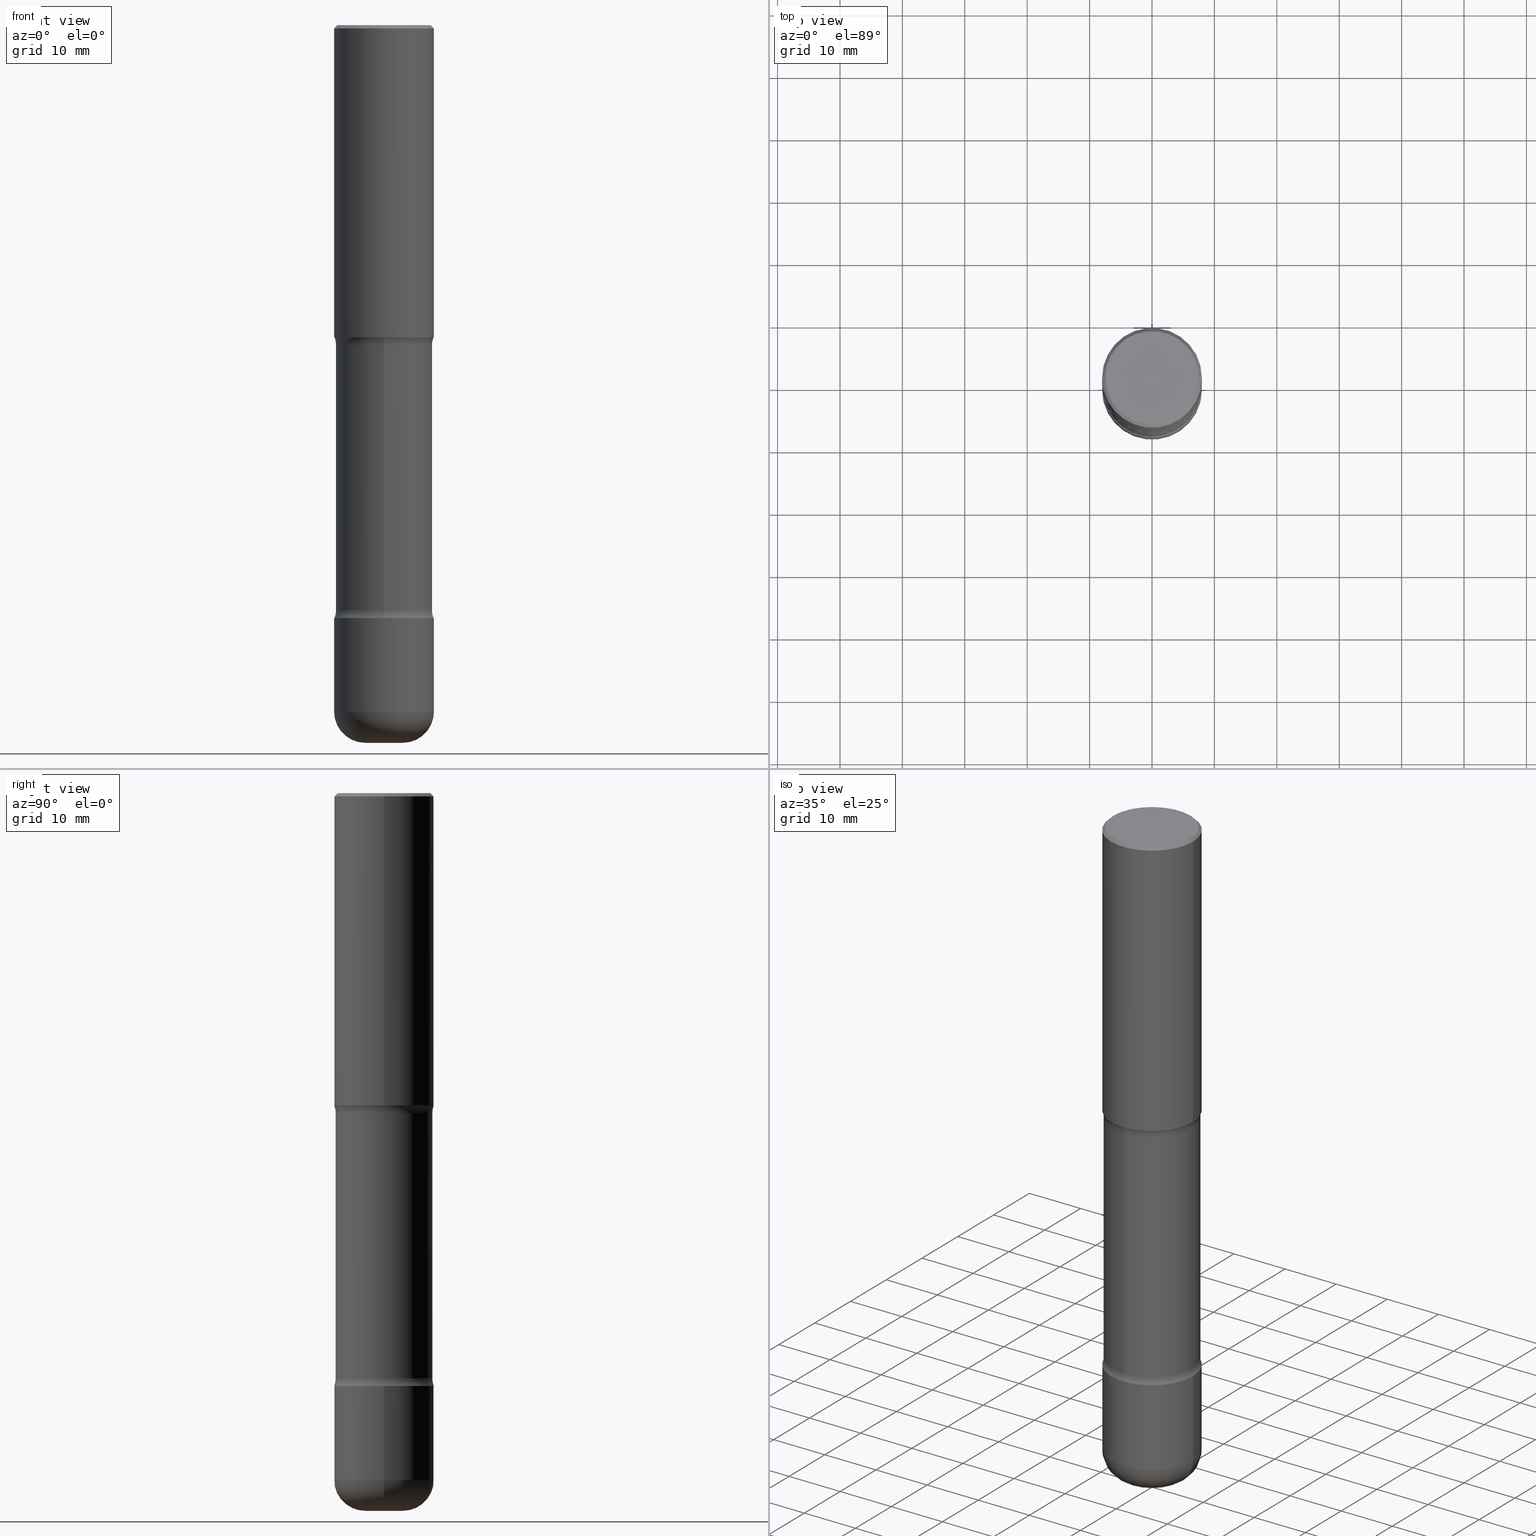
[diagram: canonical four-view strip — front | top / right | iso, engineering-drawing reading convention]
A machine part, canonical four-view strip (front | top / right | iso — engineering-drawing reading convention). The complete STEP part file that produces these views, byte-faithful:
ISO-10303-21;
HEADER;
FILE_DESCRIPTION (( 'STEP AP203' ),
    '1' );
FILE_NAME ('46835.STEP',
    '2024-03-02T05:45:21',
    ( '' ),
    ( '' ),
    'SwSTEP 2.0',
    'SolidWorks 2023',
    '' );
FILE_SCHEMA (( 'CONFIG_CONTROL_DESIGN' ));
ENDSEC;

DATA;
#1 = CIRCLE ( 'NONE', #430, 0.3149500000000001743 ) ;
#2 = VERTEX_POINT ( 'NONE', #418 ) ;
#3 = LOCAL_TIME ( 0, 45, 21.00000000000000000, #375 ) ;
#4 = EDGE_CURVE ( 'NONE', #214, #2, #13, .T. ) ;
#5 = DIRECTION ( 'NONE',  ( -2.445468806185136597E-29, 3.491481338843145583E-15, 1.000000000000000000 ) ) ;
#6 = ORIENTED_EDGE ( 'NONE', *, *, #505, .T. ) ;
#7 = ORIENTED_EDGE ( 'NONE', *, *, #287, .T. ) ;
#8 = TOROIDAL_SURFACE ( 'NONE', #331, 0.1180500000000003352, 0.1969000000000001305 ) ;
#9 = AXIS2_PLACEMENT_3D ( 'NONE', #201, #290, #466 ) ;
#10 = DIRECTION ( 'NONE',  ( 1.000000000000000000, -6.982962677686267499E-15, 4.876176775795936353E-29 ) ) ;
#11 = DESIGN_CONTEXT ( 'detailed design', #121, 'design' ) ;
#12 = DIRECTION ( 'NONE',  ( 2.508997697352003204E-29, -3.400504350852260021E-15, -1.000000000000000000 ) ) ;
#13 = LINE ( 'NONE', #535, #199 ) ;
#14 = PERSON_AND_ORGANIZATION ( #553, #539 ) ;
#15 = DIRECTION ( 'NONE',  ( 2.508997697352003204E-29, -3.400504350852260021E-15, -1.000000000000000000 ) ) ;
#16 = EDGE_CURVE ( 'NONE', #102, #214, #537, .T. ) ;
#17 = VERTEX_POINT ( 'NONE', #250 ) ;
#18 = DATE_AND_TIME ( #502, #192 ) ;
#19 = AXIS2_PLACEMENT_3D ( 'NONE', #389, #168, #83 ) ;
#20 = AXIS2_PLACEMENT_3D ( 'NONE', #385, #5, #215 ) ;
#21 = CIRCLE ( 'NONE', #240, 0.3149500000000002298 ) ;
#22 = FACE_OUTER_BOUND ( 'NONE', #194, .T. ) ;
#23 = ORIENTED_EDGE ( 'NONE', *, *, #136, .T. ) ;
#24 = PERSON_AND_ORGANIZATION_ROLE ( 'creator' ) ;
#25 = CARTESIAN_POINT ( 'NONE',  ( -0.3149500000000002853, 2.237854346276437562E-15, -1.549218606675783797E-29 ) ) ;
#26 = CC_DESIGN_DATE_AND_TIME_ASSIGNMENT ( #327, #115, ( #209 ) ) ;
#27 = ORIENTED_EDGE ( 'NONE', *, *, #178, .F. ) ;
#28 = MANIFOLD_SOLID_BREP ( 'Body-Move/Copy2[4]', #446 ) ;
#29 = ORIENTED_EDGE ( 'NONE', *, *, #178, .T. ) ;
#30 = CARTESIAN_POINT ( 'NONE',  ( 4.838038961945526824E-29, -7.180209988345925109E-15, -2.017372256956274423 ) ) ;
#31 = ADVANCED_FACE ( 'NONE', ( #345 ), #127, .F. ) ;
#32 = APPLICATION_CONTEXT ( 'configuration controlled 3d designs of mechanical parts and assemblies' ) ;
#33 = AXIS2_PLACEMENT_3D ( 'NONE', #509, #428, #126 ) ;
#34 = CARTESIAN_POINT ( 'NONE',  ( 0.3149500000000002298, -1.525812259887842581E-14, -3.740200000000000635 ) ) ;
#35 = FACE_OUTER_BOUND ( 'NONE', #313, .T. ) ;
#36 = AXIS2_PLACEMENT_3D ( 'NONE', #180, #348, #401 ) ;
#37 = CIRCLE ( 'NONE', #9, 0.3149500000000003408 ) ;
#38 = DIRECTION ( 'NONE',  ( 2.445468806185136597E-29, -3.491481338843145583E-15, -1.000000000000000000 ) ) ;
#39 = DIRECTION ( 'NONE',  ( -1.000000000000000000, 6.982962677686265922E-15, 0.000000000000000000 ) ) ;
#40 = COORDINATED_UNIVERSAL_TIME_OFFSET ( 5, 0, .BEHIND. ) ;
#41 = EDGE_CURVE ( 'NONE', #118, #146, #76, .T. ) ;
#42 = DIRECTION ( 'NONE',  ( 1.000000000000000000, -6.982962677686264344E-15, 0.000000000000000000 ) ) ;
#43 = DIRECTION ( 'NONE',  ( -2.445468806185136597E-29, 3.491481338843145583E-15, 1.000000000000000000 ) ) ;
#44 = AXIS2_PLACEMENT_3D ( 'NONE', #444, #368, #540 ) ;
#45 = PERSON_AND_ORGANIZATION ( #553, #539 ) ;
#46 = DIRECTION ( 'NONE',  ( -2.438088387897960049E-29, 3.491481338843145188E-15, 1.000000000000000000 ) ) ;
#47 = EDGE_CURVE ( 'NONE', #56, #546, #150, .T. ) ;
#48 = PLANE ( 'NONE',  #547 ) ;
#49 = EDGE_LOOP ( 'NONE', ( #360, #450, #458, #196 ) ) ;
#50 = AXIS2_PLACEMENT_3D ( 'NONE', #340, #433, #495 ) ;
#51 = ORIENTED_EDGE ( 'NONE', *, *, #16, .T. ) ;
#52 =( CONVERSION_BASED_UNIT ( 'INCH', #253 ) LENGTH_UNIT ( ) NAMED_UNIT ( #143 ) );
#53 = EDGE_CURVE ( 'NONE', #102, #414, #425, .T. ) ;
#54 = ORIENTED_EDGE ( 'NONE', *, *, #72, .T. ) ;
#55 = CYLINDRICAL_SURFACE ( 'NONE', #219, 0.3049999999999999378 ) ;
#56 = VERTEX_POINT ( 'NONE', #163 ) ;
#57 = VECTOR ( 'NONE', #60, 39.37007874015748143 ) ;
#58 = CARTESIAN_POINT ( 'NONE',  ( 1.112212721578861617E-28, -1.573639562940220266E-14, -4.527600000000000513 ) ) ;
#59 = EDGE_LOOP ( 'NONE', ( #281, #443 ) ) ;
#60 = DIRECTION ( 'NONE',  ( -0.7071067811865471286, 2.468850131082252722E-15, -0.7071067811865479058 ) ) ;
#61 = ORIENTED_EDGE ( 'NONE', *, *, #167, .F. ) ;
#62 = DIRECTION ( 'NONE',  ( 7.105427357601001859E-15, 1.000000000000000000, -3.491481338843145583E-15 ) ) ;
#63 = CYLINDRICAL_SURFACE ( 'NONE', #204, 0.3149500000000002853 ) ;
#64 = ORIENTED_EDGE ( 'NONE', *, *, #105, .T. ) ;
#65 = AXIS2_PLACEMENT_3D ( 'NONE', #184, #269, #187 ) ;
#66 = DIRECTION ( 'NONE',  ( 6.982962677686265922E-15, 1.000000000000000000, -3.469564049740289220E-15 ) ) ;
#67 = AXIS2_PLACEMENT_3D ( 'NONE', #533, #15, #66 ) ;
#68 = CARTESIAN_POINT ( 'NONE',  ( 0.000000000000000000, 0.000000000000000000, 0.000000000000000000 ) ) ;
#69 = ORIENTED_EDGE ( 'NONE', *, *, #82, .F. ) ;
#70 = CARTESIAN_POINT ( 'NONE',  ( 0.2949499999999998234, -2.127023677808859286E-15, 1.280553747031587399E-17 ) ) ;
#71 = ORIENTED_EDGE ( 'NONE', *, *, #542, .T. ) ;
#72 = EDGE_CURVE ( 'NONE', #135, #142, #508, .T. ) ;
#73 = APPROVAL_STATUS ( 'not_yet_approved' ) ;
#74 = CARTESIAN_POINT ( 'NONE',  ( 4.813905344975441835E-29, -6.872981015512731707E-15, -1.968500000000000139 ) ) ;
#75 = DIRECTION ( 'NONE',  ( 6.982962677686266711E-15, 1.000000000000000000, -3.582751467100674095E-15 ) ) ;
#76 = CIRCLE ( 'NONE', #349, 0.3149500000000001743 ) ;
#77 = DIRECTION ( 'NONE',  ( 2.508997697352003204E-29, -3.400504350852260021E-15, -1.000000000000000000 ) ) ;
#78 = DIRECTION ( 'NONE',  ( -1.000000000000000000, 6.982962677686265922E-15, 0.000000000000000000 ) ) ;
#79 = ADVANCED_FACE ( 'NONE', ( #335 ), #551, .T. ) ;
#80 = CARTESIAN_POINT ( 'NONE',  ( 0.3149499999999998967, -2.230543471175006266E-15, -0.02000000000000006981 ) ) ;
#81 = COORDINATED_UNIVERSAL_TIME_OFFSET ( 5, 0, .BEHIND. ) ;
#82 = EDGE_CURVE ( 'NONE', #546, #56, #381, .T. ) ;
#83 = DIRECTION ( 'NONE',  ( -1.000000000000000000, 6.982962677686265922E-15, -4.876176775795935793E-29 ) ) ;
#84 = DIRECTION ( 'NONE',  ( 6.982962677686265922E-15, 1.000000000000000000, -3.400504350852260021E-15 ) ) ;
#85 = APPROVAL ( #88, 'UNSPECIFIED' ) ;
#86 = DIRECTION ( 'NONE',  ( 1.000000000000000000, -6.982962677686263555E-15, 0.000000000000000000 ) ) ;
#87 = CIRCLE ( 'NONE', #403, 0.3049999999999998823 ) ;
#88 = APPROVAL_STATUS ( 'not_yet_approved' ) ;
#89 = PERSON_AND_ORGANIZATION_ROLE ( 'creator' ) ;
#90 = CARTESIAN_POINT ( 'NONE',  ( 2.059624841783562880E-15, 0.2949499999999998234, -1.023409652156634547E-15 ) ) ;
#91 = DIRECTION ( 'NONE',  ( 1.000000000000000000, -6.982962677686263555E-15, 0.000000000000000000 ) ) ;
#92 = DIRECTION ( 'NONE',  ( -2.508997697352002923E-29, 3.400504350852260021E-15, 1.000000000000000000 ) ) ;
#93 = ORIENTED_EDGE ( 'NONE', *, *, #334, .F. ) ;
#94 = CIRCLE ( 'NONE', #67, 0.3149500000000003408 ) ;
#95 = ADVANCED_FACE ( 'NONE', ( #166 ), #8, .T. ) ;
#96 = DIRECTION ( 'NONE',  ( 2.508997697352003204E-29, -3.400504350852260021E-15, -1.000000000000000000 ) ) ;
#97 = EDGE_LOOP ( 'NONE', ( #494, #61 ) ) ;
#98 = FACE_OUTER_BOUND ( 'NONE', #497, .T. ) ;
#99 = ADVANCED_FACE ( 'NONE', ( #506 ), #394, .T. ) ;
#100 = DIRECTION ( 'NONE',  ( -1.000000000000000000, 6.982962677686265922E-15, -4.883557194083112340E-29 ) ) ;
#101 = DIRECTION ( 'NONE',  ( -6.982962677686265922E-15, -1.000000000000000000, 3.400504350852260021E-15 ) ) ;
#102 = VERTEX_POINT ( 'NONE', #338 ) ;
#103 = DIRECTION ( 'NONE',  ( 6.860497997771529985E-15, 1.000000000000000000, 0.000000000000000000 ) ) ;
#104 = EDGE_LOOP ( 'NONE', ( #352, #23, #252, #264 ) ) ;
#105 = EDGE_CURVE ( 'NONE', #214, #316, #320, .T. ) ;
#106 = VECTOR ( 'NONE', #301, 39.37007874015748143 ) ;
#107 = FACE_OUTER_BOUND ( 'NONE', #104, .T. ) ;
#108 = DIRECTION ( 'NONE',  ( 2.508997697352003204E-29, -3.400504350852260021E-15, -1.000000000000000000 ) ) ;
#109 = ORIENTED_EDGE ( 'NONE', *, *, #4, .F. ) ;
#110 = CALENDAR_DATE ( 2024, 2, 3 ) ;
#111 = ORIENTED_EDGE ( 'NONE', *, *, #399, .F. ) ;
#112 = APPLICATION_PROTOCOL_DEFINITION ( 'international standard', 'config_control_design', 1994, #121 ) ;
#113 = DIRECTION ( 'NONE',  ( 6.860497997771529985E-15, 1.000000000000000000, 0.000000000000000000 ) ) ;
#114 = ORIENTED_EDGE ( 'NONE', *, *, #377, .F. ) ;
#115 = DATE_TIME_ROLE ( 'creation_date' ) ;
#116 = CIRCLE ( 'NONE', #500, 0.2949499999999998234 ) ;
#117 = ADVANCED_FACE ( 'NONE', ( #122 ), #456, .T. ) ;
#118 = VERTEX_POINT ( 'NONE', #507 ) ;
#119 = PERSON_AND_ORGANIZATION ( #553, #539 ) ;
#120 = DIRECTION ( 'NONE',  ( -2.445468806185136597E-29, 3.491481338843145583E-15, 1.000000000000000000 ) ) ;
#121 = APPLICATION_CONTEXT ( 'configuration controlled 3d designs of mechanical parts and assemblies' ) ;
#122 = FACE_OUTER_BOUND ( 'NONE', #179, .T. ) ;
#123 = EDGE_CURVE ( 'NONE', #134, #541, #344, .T. ) ;
#124 = AXIS2_PLACEMENT_3D ( 'NONE', #280, #504, #91 ) ;
#125 = DIRECTION ( 'NONE',  ( -2.445468806185136597E-29, 3.491481338843145583E-15, 1.000000000000000000 ) ) ;
#126 = DIRECTION ( 'NONE',  ( -1.000000000000000000, 6.982962677686265922E-15, -4.876176775795935793E-29 ) ) ;
#127 = PLANE ( 'NONE',  #33 ) ;
#128 = CLOSED_SHELL ( 'NONE', ( #407, #117, #99, #246, #454, #323 ) ) ;
#129 = AXIS2_PLACEMENT_3D ( 'NONE', #470, #125, #42 ) ;
#130 = EDGE_CURVE ( 'NONE', #541, #546, #514, .T. ) ;
#131 = CARTESIAN_POINT ( 'NONE',  ( 4.823971588662791399E-29, -7.200355267551965208E-15, -2.017372256956274423 ) ) ;
#132 = ORIENTED_EDGE ( 'NONE', *, *, #357, .F. ) ;
#133 = EDGE_CURVE ( 'NONE', #414, #2, #87, .T. ) ;
#134 = VERTEX_POINT ( 'NONE', #238 ) ;
#135 = VERTEX_POINT ( 'NONE', #202 ) ;
#136 = EDGE_CURVE ( 'NONE', #146, #118, #1, .T. ) ;
#137 = CARTESIAN_POINT ( 'NONE',  ( 1.107210456688382522E-28, -1.580803090974622705E-14, -4.527600000000000513 ) ) ;
#138 = AXIS2_PLACEMENT_3D ( 'NONE', #148, #319, #410 ) ;
#139 = ORIENTED_EDGE ( 'NONE', *, *, #4, .T. ) ;
#140 = CARTESIAN_POINT ( 'NONE',  ( -0.1180500000000003630, -1.392596954901650053E-14, -4.527600000000000513 ) ) ;
#141 = DIRECTION ( 'NONE',  ( 6.982962677686265922E-15, 1.000000000000000000, -3.400504350852260021E-15 ) ) ;
#142 = VERTEX_POINT ( 'NONE', #80 ) ;
#143 = DIMENSIONAL_EXPONENTS ( 1.000000000000000000, 0.000000000000000000, 0.000000000000000000, 0.000000000000000000, 0.000000000000000000, 0.000000000000000000, 0.000000000000000000 ) ;
#144 = PRODUCT_RELATED_PRODUCT_CATEGORY ( 'detail', '', ( #308 ) ) ;
#145 = CARTESIAN_POINT ( 'NONE',  ( -2.160713844398053432E-15, -0.3149500000000131639, -3.740199999999999747 ) ) ;
#146 = VERTEX_POINT ( 'NONE', #382 ) ;
#147 = COORDINATED_UNIVERSAL_TIME_OFFSET ( 5, 0, .BEHIND. ) ;
#148 = CARTESIAN_POINT ( 'NONE',  ( 0.1180500000000003352, -1.594489697822887924E-14, -4.330700000000000216 ) ) ;
#149 = EDGE_LOOP ( 'NONE', ( #409, #51, #139, #482 ) ) ;
#150 = CIRCLE ( 'NONE', #463, 0.3149500000000002298 ) ;
#151 = AXIS2_PLACEMENT_3D ( 'NONE', #419, #203, #86 ) ;
#152 = APPROVAL_DATE_TIME ( #18, #525 ) ;
#153 = CARTESIAN_POINT ( 'NONE',  ( 9.027026849019219293E-29, -1.288820193039116093E-14, -3.691327743043727239 ) ) ;
#154 = ORIENTED_EDGE ( 'NONE', *, *, #521, .F. ) ;
#155 = DIRECTION ( 'NONE',  ( 1.000000000000000000, -6.982962677686267499E-15, 4.876053491004737710E-29 ) ) ;
#156 = EDGE_LOOP ( 'NONE', ( #272, #309 ) ) ;
#157 = EDGE_CURVE ( 'NONE', #188, #544, #172, .T. ) ;
#158 = ORIENTED_EDGE ( 'NONE', *, *, #424, .T. ) ;
#159 = MECHANICAL_CONTEXT ( 'NONE', #32, 'mechanical' ) ;
#160 = CLOSED_SHELL ( 'NONE', ( #162, #95, #79, #383, #363, #31 ) ) ;
#161 = TOROIDAL_SURFACE ( 'NONE', #310, 0.4300000000000000488, 0.1250000000000000278 ) ;
#162 = ADVANCED_FACE ( 'NONE', ( #474 ), #254, .T. ) ;
#163 = CARTESIAN_POINT ( 'NONE',  ( -0.3149500000000002298, -1.185184402255813765E-14, -3.740200000000000635 ) ) ;
#164 = PERSON_AND_ORGANIZATION_ROLE ( 'classification_officer' ) ;
#165 = DIRECTION ( 'NONE',  ( 1.000000000000000000, -6.982962677686269866E-15, 0.000000000000000000 ) ) ;
#166 = FACE_OUTER_BOUND ( 'NONE', #435, .T. ) ;
#167 = EDGE_CURVE ( 'NONE', #487, #277, #181, .T. ) ;
#168 = DIRECTION ( 'NONE',  ( 2.438088387897960049E-29, -3.491481338843145188E-15, -1.000000000000000000 ) ) ;
#169 =( LENGTH_UNIT ( ) NAMED_UNIT ( * ) SI_UNIT ( $, .METRE. ) );
#170 = CARTESIAN_POINT ( 'NONE',  ( 3.002673951405142333E-15, 0.4299999999999927769, -2.017372256956275756 ) ) ;
#171 = DATE_TIME_ROLE ( 'classification_date' ) ;
#172 = CIRCLE ( 'NONE', #20, 0.2949499999999998234 ) ;
#173 = AXIS2_PLACEMENT_3D ( 'NONE', #485, #100, #265 ) ;
#174 = ORIENTED_EDGE ( 'NONE', *, *, #267, .F. ) ;
#175 = LINE ( 'NONE', #288, #106 ) ;
#176 = EDGE_CURVE ( 'NONE', #118, #142, #206, .T. ) ;
#177 = FACE_OUTER_BOUND ( 'NONE', #365, .T. ) ;
#178 = EDGE_CURVE ( 'NONE', #214, #102, #538, .T. ) ;
#179 = EDGE_LOOP ( 'NONE', ( #274, #445, #71, #132 ) ) ;
#180 = CARTESIAN_POINT ( 'NONE',  ( 0.000000000000000000, 0.000000000000000000, 0.000000000000000000 ) ) ;
#181 = CIRCLE ( 'NONE', #350, 0.1180500000000003630 ) ;
#182 = ORIENTED_EDGE ( 'NONE', *, *, #377, .T. ) ;
#183 = CC_DESIGN_DATE_AND_TIME_ASSIGNMENT ( #289, #171, ( #405 ) ) ;
#184 = CARTESIAN_POINT ( 'NONE',  ( 0.000000000000000000, 0.000000000000000000, 0.000000000000000000 ) ) ;
#185 = APPROVAL_ROLE ( '' ) ;
#186 = CARTESIAN_POINT ( 'NONE',  ( -2.160713844398098792E-15, -0.3149500000000073907, -1.968499999999999028 ) ) ;
#187 = DIRECTION ( 'NONE',  ( 1.000000000000000000, -6.982962677686266711E-15, 4.876176775795936353E-29 ) ) ;
#188 = VERTEX_POINT ( 'NONE', #263 ) ;
#189 = CARTESIAN_POINT ( 'NONE',  ( 0.000000000000000000, 0.000000000000000000, 0.000000000000000000 ) ) ;
#190 = ORIENTED_EDGE ( 'NONE', *, *, #105, .F. ) ;
#191 = AXIS2_PLACEMENT_3D ( 'NONE', #472, #96, #442 ) ;
#192 = LOCAL_TIME ( 0, 45, 21.00000000000000000, #415 ) ;
#193 = DIRECTION ( 'NONE',  ( 2.508997697352003204E-29, -3.400504350852260021E-15, -1.000000000000000000 ) ) ;
#194 = EDGE_LOOP ( 'NONE', ( #93, #417, #529, #524 ) ) ;
#195 = CARTESIAN_POINT ( 'NONE',  ( -0.1180500000000003352, -1.428176253456320999E-14, -4.330700000000000216 ) ) ;
#196 = ORIENTED_EDGE ( 'NONE', *, *, #176, .F. ) ;
#197 = DIRECTION ( 'NONE',  ( 1.000000000000000000, 0.000000000000000000, 0.000000000000000000 ) ) ;
#198 = CARTESIAN_POINT ( 'NONE',  ( 4.890937612370289799E-31, -6.982962677686315028E-17, -0.02000000000000006981 ) ) ;
#199 = VECTOR ( 'NONE', #318, 39.37007874015748143 ) ;
#200 = AXIS2_PLACEMENT_3D ( 'NONE', #512, #469, #39 ) ;
#201 = CARTESIAN_POINT ( 'NONE',  ( 4.701351208495103638E-29, -7.034164945136184012E-15, -1.968500000000000139 ) ) ;
#202 = CARTESIAN_POINT ( 'NONE',  ( -0.3149499999999998967, 2.129454468560425784E-15, -0.02000000000000006981 ) ) ;
#203 = DIRECTION ( 'NONE',  ( -2.445468806185136597E-29, 3.491481338843145583E-15, 1.000000000000000000 ) ) ;
#204 = AXIS2_PLACEMENT_3D ( 'NONE', #189, #543, #10 ) ;
#205 = ADVANCED_FACE ( 'NONE', ( #304 ), #48, .F. ) ;
#206 = LINE ( 'NONE', #520, #270 ) ;
#207 = DIRECTION ( 'NONE',  ( 2.438088387897960049E-29, -3.491481338843145188E-15, -1.000000000000000000 ) ) ;
#208 = EDGE_LOOP ( 'NONE', ( #305, #268, #411, #376 ) ) ;
#209 = PRODUCT_DEFINITION ( 'UNKNOWN', '', #559, #11 ) ;
#210 = AXIS2_PLACEMENT_3D ( 'NONE', #355, #311, #481 ) ;
#211 = ADVANCED_BREP_SHAPE_REPRESENTATION ( '46835', ( #422, #212, #28, #438 ), #249 ) ;
#212 = MANIFOLD_SOLID_BREP ( 'Body-Move/Copy2[2]', #128 ) ;
#213 = AXIS2_PLACEMENT_3D ( 'NONE', #195, #62, #484 ) ;
#214 = VERTEX_POINT ( 'NONE', #266 ) ;
#215 = DIRECTION ( 'NONE',  ( 1.000000000000000000, -6.982962677686267499E-15, 4.876053491004737710E-29 ) ) ;
#216 = CC_DESIGN_PERSON_AND_ORGANIZATION_ASSIGNMENT ( #390, #89, ( #559 ) ) ;
#217 = ORIENTED_EDGE ( 'NONE', *, *, #399, .T. ) ;
#218 = CARTESIAN_POINT ( 'NONE',  ( -3.131554243005659264E-46, 4.471029511141341874E-32, 1.280553747030123384E-17 ) ) ;
#219 = AXIS2_PLACEMENT_3D ( 'NONE', #412, #193, #372 ) ;
#220 = CIRCLE ( 'NONE', #213, 0.1969000000000001027 ) ;
#221 = EDGE_CURVE ( 'NONE', #146, #135, #260, .T. ) ;
#222 = DIRECTION ( 'NONE',  ( 6.982962677686266711E-15, 1.000000000000000000, -3.582751467100674095E-15 ) ) ;
#223 = ORIENTED_EDGE ( 'NONE', *, *, #130, .F. ) ;
#224 = ADVANCED_FACE ( 'NONE', ( #177 ), #447, .F. ) ;
#225 = CARTESIAN_POINT ( 'NONE',  ( 9.027026849019219293E-29, -1.288820193039116093E-14, -3.691327743043727239 ) ) ;
#226 = DIRECTION ( 'NONE',  ( -1.000000000000000000, 6.982962677686265922E-15, -4.876176775795935793E-29 ) ) ;
#227 = DIRECTION ( 'NONE',  ( 2.508997697352003204E-29, -3.400504350852260021E-15, -1.000000000000000000 ) ) ;
#228 = EDGE_CURVE ( 'NONE', #400, #17, #292, .T. ) ;
#229 = DIRECTION ( 'NONE',  ( 2.508997697352003204E-29, -3.400504350852260021E-15, -1.000000000000000000 ) ) ;
#230 = EDGE_LOOP ( 'NONE', ( #236, #398, #478, #452 ) ) ;
#231 = CIRCLE ( 'NONE', #557, 0.1250000000000000278 ) ;
#232 = APPROVAL_ROLE ( '' ) ;
#233 = AXIS2_PLACEMENT_3D ( 'NONE', #468, #503, #545 ) ;
#234 = DIRECTION ( 'NONE',  ( 1.000000000000000000, -6.982962677686265922E-15, 4.876176775795935793E-29 ) ) ;
#235 = DIRECTION ( 'NONE',  ( 1.000000000000000000, -6.982962677686266711E-15, 4.876176775795936353E-29 ) ) ;
#236 = ORIENTED_EDGE ( 'NONE', *, *, #424, .F. ) ;
#237 = ORIENTED_EDGE ( 'NONE', *, *, #287, .F. ) ;
#238 = CARTESIAN_POINT ( 'NONE',  ( -0.3149500000000003408, -1.288270388785157535E-14, -4.330700000000000216 ) ) ;
#239 = AXIS2_PLACEMENT_3D ( 'NONE', #90, #207, #226 ) ;
#240 = AXIS2_PLACEMENT_3D ( 'NONE', #329, #77, #241 ) ;
#241 = DIRECTION ( 'NONE',  ( 6.982962677686264344E-15, 1.000000000000000000, -3.469564049740290403E-15 ) ) ;
#242 = CARTESIAN_POINT ( 'NONE',  ( 0.3149500000000002853, -2.199284095337291843E-15, 1.535751875536931531E-29 ) ) ;
#243 = CC_DESIGN_PERSON_AND_ORGANIZATION_ASSIGNMENT ( #45, #426, ( #559 ) ) ;
#244 = PLANE ( 'NONE',  #465 ) ;
#245 = DIRECTION ( 'NONE',  ( 2.508997697352003204E-29, -3.400504350852260021E-15, -1.000000000000000000 ) ) ;
#246 = ADVANCED_FACE ( 'NONE', ( #391 ), #434, .F. ) ;
#247 = DIRECTION ( 'NONE',  ( 1.000000000000000000, -6.982962677686266711E-15, 4.883557194083112901E-29 ) ) ;
#248 = CIRCLE ( 'NONE', #271, 0.1250000000000000000 ) ;
#249 =( GEOMETRIC_REPRESENTATION_CONTEXT ( 3 ) GLOBAL_UNCERTAINTY_ASSIGNED_CONTEXT ( ( #488 ) ) GLOBAL_UNIT_ASSIGNED_CONTEXT ( ( #52, #519, #257 ) ) REPRESENTATION_CONTEXT ( 'NONE', 'WORKASPACE' ) );
#250 = CARTESIAN_POINT ( 'NONE',  ( 2.199284095337382168E-15, 0.3149499999999870181, -3.740200000000001967 ) ) ;
#251 = EDGE_CURVE ( 'NONE', #277, #487, #492, .T. ) ;
#252 = ORIENTED_EDGE ( 'NONE', *, *, #176, .T. ) ;
#253 = LENGTH_MEASURE_WITH_UNIT ( LENGTH_MEASURE( 0.02539999999999999897 ), #169 );
#254 = CYLINDRICAL_SURFACE ( 'NONE', #36, 0.3149500000000002853 ) ;
#255 = DATE_AND_TIME ( #397, #388 ) ;
#256 = ORIENTED_EDGE ( 'NONE', *, *, #41, .F. ) ;
#257 =( NAMED_UNIT ( * ) SI_UNIT ( $, .STERADIAN. ) SOLID_ANGLE_UNIT ( ) );
#258 = AXIS2_PLACEMENT_3D ( 'NONE', #560, #43, #300 ) ;
#259 = AXIS2_PLACEMENT_3D ( 'NONE', #30, #108, #84 ) ;
#260 = LINE ( 'NONE', #518, #380 ) ;
#261 = CIRCLE ( 'NONE', #173, 0.1250000000000000278 ) ;
#262 = ORIENTED_EDGE ( 'NONE', *, *, #357, .T. ) ;
#263 = CARTESIAN_POINT ( 'NONE',  ( -0.2949499999999998234, 2.094539655171994135E-15, 1.280553747028670770E-17 ) ) ;
#264 = ORIENTED_EDGE ( 'NONE', *, *, #72, .F. ) ;
#265 = DIRECTION ( 'NONE',  ( -6.982962677686265133E-15, -1.000000000000000000, 0.000000000000000000 ) ) ;
#266 = CARTESIAN_POINT ( 'NONE',  ( 2.129803616694359388E-15, 0.3049999999999927769, -2.017372256956275756 ) ) ;
#267 = EDGE_CURVE ( 'NONE', #544, #142, #175, .T. ) ;
#268 = ORIENTED_EDGE ( 'NONE', *, *, #334, .T. ) ;
#269 = DIRECTION ( 'NONE',  ( -2.445468806185136597E-29, 3.491481338843145583E-15, 1.000000000000000000 ) ) ;
#270 = VECTOR ( 'NONE', #359, 39.37007874015748143 ) ;
#271 = AXIS2_PLACEMENT_3D ( 'NONE', #326, #498, #113 ) ;
#272 = ORIENTED_EDGE ( 'NONE', *, *, #82, .T. ) ;
#273 = DIRECTION ( 'NONE',  ( 1.000000000000000000, -6.860497997771530774E-15, 4.841913026395534193E-29 ) ) ;
#274 = ORIENTED_EDGE ( 'NONE', *, *, #392, .F. ) ;
#275 = APPROVAL_STATUS ( 'not_yet_approved' ) ;
#276 = DIRECTION ( 'NONE',  ( 6.982962677686265922E-15, 1.000000000000000000, -3.400504350852260021E-15 ) ) ;
#277 = VERTEX_POINT ( 'NONE', #396 ) ;
#278 = CARTESIAN_POINT ( 'NONE',  ( 0.000000000000000000, 0.000000000000000000, 0.000000000000000000 ) ) ;
#279 = FACE_OUTER_BOUND ( 'NONE', #49, .T. ) ;
#280 = CARTESIAN_POINT ( 'NONE',  ( 1.059059175894597327E-28, -1.512055823412801291E-14, -4.330700000000000216 ) ) ;
#281 = ORIENTED_EDGE ( 'NONE', *, *, #157, .T. ) ;
#282 = TOROIDAL_SURFACE ( 'NONE', #44, 0.1180500000000003352, 0.1969000000000001305 ) ;
#283 = CC_DESIGN_SECURITY_CLASSIFICATION ( #405, ( #559 ) ) ;
#284 = ORIENTED_EDGE ( 'NONE', *, *, #136, .F. ) ;
#285 = DIRECTION ( 'NONE',  ( 0.000000000000000000, 0.000000000000000000, 1.000000000000000000 ) ) ;
#286 = DIRECTION ( 'NONE',  ( -2.445468806185136877E-29, 3.491481338843145188E-15, 1.000000000000000000 ) ) ;
#287 = EDGE_CURVE ( 'NONE', #541, #134, #369, .T. ) ;
#288 = CARTESIAN_POINT ( 'NONE',  ( 0.3149499999999998967, -2.230543471175006266E-15, -0.02000000000000006981 ) ) ;
#289 = DATE_AND_TIME ( #336, #333 ) ;
#290 = DIRECTION ( 'NONE',  ( 2.508997697352003204E-29, -3.400504350852260021E-15, -1.000000000000000000 ) ) ;
#291 = CARTESIAN_POINT ( 'NONE',  ( 1.059059175894597327E-28, -1.512055823412801291E-14, -4.330700000000000216 ) ) ;
#292 = CIRCLE ( 'NONE', #191, 0.3149500000000002298 ) ;
#293 = CC_DESIGN_APPROVAL ( #85, ( #405 ) ) ;
#294 = DIRECTION ( 'NONE',  ( 2.508997697352002923E-29, -3.400504350852260021E-15, -1.000000000000000000 ) ) ;
#295 = CARTESIAN_POINT ( 'NONE',  ( 4.813905344975441835E-29, -6.872981015512731707E-15, -1.968500000000000139 ) ) ;
#296 = DIRECTION ( 'NONE',  ( 2.508997697352003204E-29, -3.400504350852260021E-15, -1.000000000000000000 ) ) ;
#297 = ADVANCED_FACE ( 'NONE', ( #35 ), #510, .F. ) ;
#298 = DIRECTION ( 'NONE',  ( 1.000000000000000000, -6.982962677686264344E-15, 0.000000000000000000 ) ) ;
#299 = APPROVAL_ROLE ( '' ) ;
#300 = DIRECTION ( 'NONE',  ( 1.000000000000000000, -6.982962677686265922E-15, 0.000000000000000000 ) ) ;
#301 = DIRECTION ( 'NONE',  ( 0.7071067811865471286, -7.319954787623254468E-15, -0.7071067811865479058 ) ) ;
#302 = AXIS2_PLACEMENT_3D ( 'NONE', #58, #496, #222 ) ;
#303 = CC_DESIGN_APPROVAL ( #328, ( #559 ) ) ;
#304 = FACE_OUTER_BOUND ( 'NONE', #473, .T. ) ;
#305 = ORIENTED_EDGE ( 'NONE', *, *, #228, .F. ) ;
#306 = EDGE_LOOP ( 'NONE', ( #29, #517, #154, #109 ) ) ;
#307 = DIRECTION ( 'NONE',  ( 2.508997697352003204E-29, -3.400504350852260021E-15, -1.000000000000000000 ) ) ;
#308 = PRODUCT ( '46835', '46835', '', ( #159 ) ) ;
#309 = ORIENTED_EDGE ( 'NONE', *, *, #47, .T. ) ;
#310 = AXIS2_PLACEMENT_3D ( 'NONE', #153, #229, #141 ) ;
#311 = DIRECTION ( 'NONE',  ( 2.508997697352003204E-29, -3.400504350852260021E-15, -1.000000000000000000 ) ) ;
#312 = LOCAL_TIME ( 0, 45, 21.00000000000000000, #147 ) ;
#313 = EDGE_LOOP ( 'NONE', ( #111, #27, #64, #354 ) ) ;
#314 = ADVANCED_FACE ( 'NONE', ( #536 ), #420, .F. ) ;
#315 = DIRECTION ( 'NONE',  ( -2.445468806185136597E-29, 3.491481338843145583E-15, 1.000000000000000000 ) ) ;
#316 = VERTEX_POINT ( 'NONE', #408 ) ;
#317 = FACE_OUTER_BOUND ( 'NONE', #230, .T. ) ;
#318 = DIRECTION ( 'NONE',  ( 2.508997697352003204E-29, -3.400504350852260021E-15, -1.000000000000000000 ) ) ;
#319 = DIRECTION ( 'NONE',  ( -6.982962677686266711E-15, -1.000000000000000000, 3.491481338843145583E-15 ) ) ;
#320 = CIRCLE ( 'NONE', #479, 0.1250000000000000000 ) ;
#321 = APPROVAL_PERSON_ORGANIZATION ( #342, #85, #299 ) ;
#322 = ORIENTED_EDGE ( 'NONE', *, *, #530, .T. ) ;
#323 = ADVANCED_FACE ( 'NONE', ( #107 ), #358, .T. ) ;
#324 = DATE_AND_TIME ( #366, #312 ) ;
#325 = FACE_OUTER_BOUND ( 'NONE', #306, .T. ) ;
#326 = CARTESIAN_POINT ( 'NONE',  ( -2.950014139041709158E-15, -0.4300000000000070988, -2.017372256956273091 ) ) ;
#327 = DATE_AND_TIME ( #110, #3 ) ;
#328 = APPROVAL ( #73, 'UNSPECIFIED' ) ;
#329 = CARTESIAN_POINT ( 'NONE',  ( 9.146542428893650504E-29, -1.305883850354113594E-14, -3.740200000000000635 ) ) ;
#330 = EDGE_LOOP ( 'NONE', ( #174, #406, #262, #54 ) ) ;
#331 = AXIS2_PLACEMENT_3D ( 'NONE', #291, #431, #247 ) ;
#332 = PERSON_AND_ORGANIZATION ( #553, #539 ) ;
#333 = LOCAL_TIME ( 0, 45, 21.00000000000000000, #40 ) ;
#334 = EDGE_CURVE ( 'NONE', #400, #414, #231, .T. ) ;
#335 = FACE_OUTER_BOUND ( 'NONE', #97, .T. ) ;
#336 = CALENDAR_DATE ( 2024, 2, 3 ) ;
#337 = ADVANCED_FACE ( 'NONE', ( #22 ), #161, .F. ) ;
#338 = CARTESIAN_POINT ( 'NONE',  ( -2.126582866859184041E-15, -0.3050000000000072098, -2.017372256956273535 ) ) ;
#339 = SECURITY_CLASSIFICATION_LEVEL ( 'unclassified' ) ;
#340 = CARTESIAN_POINT ( 'NONE',  ( 1.107210456688382522E-28, -1.580803090974622705E-14, -4.527600000000000513 ) ) ;
#341 = CARTESIAN_POINT ( 'NONE',  ( 9.023922048725964423E-29, -1.289264818112535948E-14, -3.691327743043727239 ) ) ;
#342 = PERSON_AND_ORGANIZATION ( #553, #539 ) ;
#343 = ADVANCED_FACE ( 'NONE', ( #451 ), #361, .T. ) ;
#344 = CIRCLE ( 'NONE', #151, 0.3149500000000002853 ) ;
#345 = FACE_OUTER_BOUND ( 'NONE', #156, .T. ) ;
#346 = PERSON_AND_ORGANIZATION ( #553, #539 ) ;
#347 = DIRECTION ( 'NONE',  ( -6.982962677686266711E-15, -1.000000000000000000, 0.000000000000000000 ) ) ;
#348 = DIRECTION ( 'NONE',  ( -2.445468806185136597E-29, 3.491481338843145583E-15, 1.000000000000000000 ) ) ;
#349 = AXIS2_PLACEMENT_3D ( 'NONE', #379, #549, #554 ) ;
#350 = AXIS2_PLACEMENT_3D ( 'NONE', #137, #523, #353 ) ;
#351 = CC_DESIGN_APPROVAL ( #525, ( #209 ) ) ;
#352 = ORIENTED_EDGE ( 'NONE', *, *, #221, .F. ) ;
#353 = DIRECTION ( 'NONE',  ( 1.000000000000000000, -6.982962677686273810E-15, 0.000000000000000000 ) ) ;
#354 = ORIENTED_EDGE ( 'NONE', *, *, #439, .T. ) ;
#355 = CARTESIAN_POINT ( 'NONE',  ( 4.838038961945526824E-29, -7.180209988345925109E-15, -2.017372256956274423 ) ) ;
#356 = ORIENTED_EDGE ( 'NONE', *, *, #462, .T. ) ;
#357 = EDGE_CURVE ( 'NONE', #188, #135, #534, .T. ) ;
#358 = CYLINDRICAL_SURFACE ( 'NONE', #65, 0.3149500000000000077 ) ;
#359 = DIRECTION ( 'NONE',  ( -2.445468806185136877E-29, 3.491481338843145188E-15, 1.000000000000000000 ) ) ;
#360 = ORIENTED_EDGE ( 'NONE', *, *, #41, .T. ) ;
#361 = CYLINDRICAL_SURFACE ( 'NONE', #302, 0.3049999999999999378 ) ;
#362 = ORIENTED_EDGE ( 'NONE', *, *, #123, .F. ) ;
#363 = ADVANCED_FACE ( 'NONE', ( #317 ), #63, .T. ) ;
#364 = CARTESIAN_POINT ( 'NONE',  ( -2.950014139041668531E-15, -0.4300000000000129829, -3.691327743043725906 ) ) ;
#365 = EDGE_LOOP ( 'NONE', ( #532, #217, #356, #190 ) ) ;
#366 = CALENDAR_DATE ( 2024, 2, 3 ) ;
#367 = VECTOR ( 'NONE', #245, 39.37007874015748143 ) ;
#368 = DIRECTION ( 'NONE',  ( -2.445468806185136597E-29, 3.491481338843145583E-15, 1.000000000000000000 ) ) ;
#369 = CIRCLE ( 'NONE', #124, 0.3149500000000002853 ) ;
#370 = APPROVAL_PERSON_ORGANIZATION ( #332, #525, #232 ) ;
#371 = ORIENTED_EDGE ( 'NONE', *, *, #505, .F. ) ;
#372 = DIRECTION ( 'NONE',  ( 6.982962677686266711E-15, 1.000000000000000000, -3.582751467100674095E-15 ) ) ;
#373 = CC_DESIGN_PERSON_AND_ORGANIZATION_ASSIGNMENT ( #453, #460, ( #308 ) ) ;
#374 = ORIENTED_EDGE ( 'NONE', *, *, #167, .T. ) ;
#375 = COORDINATED_UNIVERSAL_TIME_OFFSET ( 5, 0, .BEHIND. ) ;
#376 = ORIENTED_EDGE ( 'NONE', *, *, #427, .F. ) ;
#377 = EDGE_CURVE ( 'NONE', #277, #541, #526, .T. ) ;
#378 = CARTESIAN_POINT ( 'NONE',  ( 9.023922048725964423E-29, -1.289264818112535948E-14, -3.691327743043727239 ) ) ;
#379 = CARTESIAN_POINT ( 'NONE',  ( 4.813905344975441835E-29, -6.872981015512731707E-15, -1.968500000000000139 ) ) ;
#380 = VECTOR ( 'NONE', #440, 39.37007874015748143 ) ;
#381 = CIRCLE ( 'NONE', #129, 0.3149500000000002298 ) ;
#382 = CARTESIAN_POINT ( 'NONE',  ( -0.3149500000000001743, -1.233550974868359743E-15, -1.968500000000000139 ) ) ;
#383 = ADVANCED_FACE ( 'NONE', ( #493 ), #282, .T. ) ;
#384 = DIRECTION ( 'NONE',  ( 6.982962677686266711E-15, 1.000000000000000000, -3.582751467100673306E-15 ) ) ;
#385 = CARTESIAN_POINT ( 'NONE',  ( -3.131554243005659264E-46, 4.471029511141341874E-32, 1.280553747030123384E-17 ) ) ;
#386 = ADVANCED_FACE ( 'NONE', ( #325 ), #55, .T. ) ;
#387 = SHAPE_DEFINITION_REPRESENTATION ( #489, #211 ) ;
#388 = LOCAL_TIME ( 0, 45, 21.00000000000000000, #81 ) ;
#389 = CARTESIAN_POINT ( 'NONE',  ( -3.560724751056919683E-29, -3.676307534196017839E-14, -4.527600000000000513 ) ) ;
#390 = PERSON_AND_ORGANIZATION ( #553, #539 ) ;
#391 = FACE_OUTER_BOUND ( 'NONE', #59, .T. ) ;
#392 = EDGE_CURVE ( 'NONE', #544, #188, #116, .T. ) ;
#393 = ORIENTED_EDGE ( 'NONE', *, *, #251, .T. ) ;
#394 = CONICAL_SURFACE ( 'NONE', #200, 0.3149499999999998967, 0.7853981633974477239 ) ;
#395 = AXIS2_PLACEMENT_3D ( 'NONE', #68, #315, #235 ) ;
#396 = CARTESIAN_POINT ( 'NONE',  ( 0.1180500000000003630, -1.663236965384709338E-14, -4.527600000000000513 ) ) ;
#397 = CALENDAR_DATE ( 2024, 2, 3 ) ;
#398 = ORIENTED_EDGE ( 'NONE', *, *, #123, .T. ) ;
#399 = EDGE_CURVE ( 'NONE', #102, #459, #248, .T. ) ;
#400 = VERTEX_POINT ( 'NONE', #145 ) ;
#401 = DIRECTION ( 'NONE',  ( 1.000000000000000000, -6.982962677686267499E-15, 4.876176775795936353E-29 ) ) ;
#402 = PLANE ( 'NONE',  #457 ) ;
#403 = AXIS2_PLACEMENT_3D ( 'NONE', #341, #461, #75 ) ;
#404 = CARTESIAN_POINT ( 'NONE',  ( -2.126582866859139076E-15, -0.3050000000000128164, -3.691327743043726350 ) ) ;
#405 = SECURITY_CLASSIFICATION ( '', '', #339 ) ;
#406 = ORIENTED_EDGE ( 'NONE', *, *, #157, .F. ) ;
#407 = ADVANCED_FACE ( 'NONE', ( #279 ), #455, .T. ) ;
#408 = CARTESIAN_POINT ( 'NONE',  ( 2.199284095337339175E-15, 0.3149499999999932909, -1.968500000000001249 ) ) ;
#409 = ORIENTED_EDGE ( 'NONE', *, *, #53, .F. ) ;
#410 = DIRECTION ( 'NONE',  ( 1.000000000000000000, -6.982962677686270655E-15, 0.000000000000000000 ) ) ;
#411 = ORIENTED_EDGE ( 'NONE', *, *, #133, .T. ) ;
#412 = CARTESIAN_POINT ( 'NONE',  ( 1.112212721578861617E-28, -1.573639562940220266E-14, -4.527600000000000513 ) ) ;
#413 = AXIS2_PLACEMENT_3D ( 'NONE', #225, #12, #276 ) ;
#414 = VERTEX_POINT ( 'NONE', #404 ) ;
#415 = COORDINATED_UNIVERSAL_TIME_OFFSET ( 5, 0, .BEHIND. ) ;
#416 = LINE ( 'NONE', #25, #511 ) ;
#417 = ORIENTED_EDGE ( 'NONE', *, *, #530, .F. ) ;
#418 = CARTESIAN_POINT ( 'NONE',  ( 2.129803616694400804E-15, 0.3049999999999870037, -3.691327743043728571 ) ) ;
#419 = CARTESIAN_POINT ( 'NONE',  ( 1.059059175894597327E-28, -1.512055823412801291E-14, -4.330700000000000216 ) ) ;
#420 = TOROIDAL_SURFACE ( 'NONE', #413, 0.4300000000000000488, 0.1250000000000000278 ) ;
#421 = CIRCLE ( 'NONE', #480, 0.3049999999999998823 ) ;
#422 = MANIFOLD_SOLID_BREP ( 'Body-Move/Copy2[1]', #160 ) ;
#423 = CARTESIAN_POINT ( 'NONE',  ( 0.3149500000000003408, -1.731984232946530752E-14, -4.330700000000000216 ) ) ;
#424 = EDGE_CURVE ( 'NONE', #134, #56, #416, .T. ) ;
#425 = LINE ( 'NONE', #556, #367 ) ;
#426 = PERSON_AND_ORGANIZATION_ROLE ( 'design_supplier' ) ;
#427 = EDGE_CURVE ( 'NONE', #17, #2, #261, .T. ) ;
#428 = DIRECTION ( 'NONE',  ( 2.438088387897960049E-29, -3.491481338843145188E-15, -1.000000000000000000 ) ) ;
#429 = DIRECTION ( 'NONE',  ( -1.000000000000000000, 6.982962677686265922E-15, -4.883557194083112340E-29 ) ) ;
#430 = AXIS2_PLACEMENT_3D ( 'NONE', #295, #467, #165 ) ;
#431 = DIRECTION ( 'NONE',  ( -2.445468806185136597E-29, 3.491481338843145583E-15, 1.000000000000000000 ) ) ;
#432 = FACE_OUTER_BOUND ( 'NONE', #522, .T. ) ;
#433 = DIRECTION ( 'NONE',  ( -2.445468806185136597E-29, 3.491481338843145583E-15, 1.000000000000000000 ) ) ;
#434 = PLANE ( 'NONE',  #239 ) ;
#435 = EDGE_LOOP ( 'NONE', ( #393, #6, #237, #114 ) ) ;
#436 = CARTESIAN_POINT ( 'NONE',  ( 4.813905344975441835E-29, -6.872981015512731707E-15, -1.968500000000000139 ) ) ;
#437 = AXIS2_PLACEMENT_3D ( 'NONE', #131, #307, #477 ) ;
#438 = AXIS2_PLACEMENT_3D ( 'NONE', #278, #285, #197 ) ;
#439 = EDGE_CURVE ( 'NONE', #316, #459, #37, .T. ) ;
#440 = DIRECTION ( 'NONE',  ( -2.445468806185136877E-29, 3.491481338843145188E-15, 1.000000000000000000 ) ) ;
#441 = ORIENTED_EDGE ( 'NONE', *, *, #228, .T. ) ;
#442 = DIRECTION ( 'NONE',  ( 6.982962677686264344E-15, 1.000000000000000000, -3.469564049740290403E-15 ) ) ;
#443 = ORIENTED_EDGE ( 'NONE', *, *, #392, .T. ) ;
#444 = CARTESIAN_POINT ( 'NONE',  ( 1.059059175894597327E-28, -1.512055823412801291E-14, -4.330700000000000216 ) ) ;
#445 = ORIENTED_EDGE ( 'NONE', *, *, #267, .T. ) ;
#446 = CLOSED_SHELL ( 'NONE', ( #386, #314, #224, #297, #513, #205, #337, #343 ) ) ;
#447 = TOROIDAL_SURFACE ( 'NONE', #210, 0.4299999999999999378, 0.1250000000000000000 ) ;
#448 = EDGE_LOOP ( 'NONE', ( #7, #158, #69, #223 ) ) ;
#449 = CARTESIAN_POINT ( 'NONE',  ( -0.3149499999999998967, 2.129454468560425784E-15, -0.02000000000000006981 ) ) ;
#450 = ORIENTED_EDGE ( 'NONE', *, *, #221, .T. ) ;
#451 = FACE_OUTER_BOUND ( 'NONE', #149, .T. ) ;
#452 = ORIENTED_EDGE ( 'NONE', *, *, #47, .F. ) ;
#453 = PERSON_AND_ORGANIZATION ( #553, #539 ) ;
#454 = ADVANCED_FACE ( 'NONE', ( #432 ), #244, .F. ) ;
#455 = CYLINDRICAL_SURFACE ( 'NONE', #395, 0.3149500000000000077 ) ;
#456 = CONICAL_SURFACE ( 'NONE', #471, 0.3149499999999998967, 0.7853981633974477239 ) ;
#457 = AXIS2_PLACEMENT_3D ( 'NONE', #74, #294, #555 ) ;
#458 = ORIENTED_EDGE ( 'NONE', *, *, #542, .F. ) ;
#459 = VERTEX_POINT ( 'NONE', #186 ) ;
#460 = PERSON_AND_ORGANIZATION_ROLE ( 'design_owner' ) ;
#461 = DIRECTION ( 'NONE',  ( 2.508997697352003204E-29, -3.400504350852260021E-15, -1.000000000000000000 ) ) ;
#462 = EDGE_CURVE ( 'NONE', #459, #316, #94, .T. ) ;
#463 = AXIS2_PLACEMENT_3D ( 'NONE', #464, #120, #298 ) ;
#464 = CARTESIAN_POINT ( 'NONE',  ( 9.146542428893650504E-29, -1.305883850354113594E-14, -3.740200000000000635 ) ) ;
#465 = AXIS2_PLACEMENT_3D ( 'NONE', #436, #46, #234 ) ;
#466 = DIRECTION ( 'NONE',  ( 6.982962677686265922E-15, 1.000000000000000000, -3.469564049740289220E-15 ) ) ;
#467 = DIRECTION ( 'NONE',  ( -2.445468806185136597E-29, 3.491481338843145583E-15, 1.000000000000000000 ) ) ;
#468 = CARTESIAN_POINT ( 'NONE',  ( 4.890937612370289799E-31, -6.982962677686315028E-17, -0.02000000000000006981 ) ) ;
#469 = DIRECTION ( 'NONE',  ( 2.445468806185136597E-29, -3.491481338843145583E-15, -1.000000000000000000 ) ) ;
#470 = CARTESIAN_POINT ( 'NONE',  ( 9.146542428893650504E-29, -1.305883850354113594E-14, -3.740200000000000635 ) ) ;
#471 = AXIS2_PLACEMENT_3D ( 'NONE', #198, #38, #78 ) ;
#472 = CARTESIAN_POINT ( 'NONE',  ( 9.146542428893650504E-29, -1.305883850354113594E-14, -3.740200000000000635 ) ) ;
#473 = EDGE_LOOP ( 'NONE', ( #322, #441 ) ) ;
#474 = FACE_OUTER_BOUND ( 'NONE', #448, .T. ) ;
#475 = CC_DESIGN_PERSON_AND_ORGANIZATION_ASSIGNMENT ( #119, #24, ( #209 ) ) ;
#476 = ORIENTED_EDGE ( 'NONE', *, *, #462, .F. ) ;
#477 = DIRECTION ( 'NONE',  ( 6.982962677686266711E-15, 1.000000000000000000, -3.582751467100673306E-15 ) ) ;
#478 = ORIENTED_EDGE ( 'NONE', *, *, #130, .T. ) ;
#479 = AXIS2_PLACEMENT_3D ( 'NONE', #170, #429, #347 ) ;
#480 = AXIS2_PLACEMENT_3D ( 'NONE', #378, #296, #552 ) ;
#481 = DIRECTION ( 'NONE',  ( 6.982962677686265922E-15, 1.000000000000000000, -3.400504350852260021E-15 ) ) ;
#482 = ORIENTED_EDGE ( 'NONE', *, *, #133, .F. ) ;
#483 = CC_DESIGN_PERSON_AND_ORGANIZATION_ASSIGNMENT ( #346, #164, ( #405 ) ) ;
#484 = DIRECTION ( 'NONE',  ( -1.000000000000000000, 7.105427357600998703E-15, 0.000000000000000000 ) ) ;
#485 = CARTESIAN_POINT ( 'NONE',  ( 3.002673951405185326E-15, 0.4299999999999871703, -3.691327743043729015 ) ) ;
#486 = CARTESIAN_POINT ( 'NONE',  ( 4.615694768568605168E-29, -1.954727023296045315E-14, -3.740200000000000635 ) ) ;
#487 = VERTEX_POINT ( 'NONE', #140 ) ;
#488 = UNCERTAINTY_MEASURE_WITH_UNIT (LENGTH_MEASURE( 1.000000000000000082E-05 ), #52, 'distance_accuracy_value', 'NONE');
#489 = PRODUCT_DEFINITION_SHAPE ( 'NONE', 'NONE',  #209 ) ;
#490 = CARTESIAN_POINT ( 'NONE',  ( 4.823971588662791399E-29, -7.200355267551965208E-15, -2.017372256956274423 ) ) ;
#491 = APPLICATION_PROTOCOL_DEFINITION ( 'international standard', 'config_control_design', 1994, #32 ) ;
#492 = CIRCLE ( 'NONE', #50, 0.1180500000000003630 ) ;
#493 = FACE_OUTER_BOUND ( 'NONE', #501, .T. ) ;
#494 = ORIENTED_EDGE ( 'NONE', *, *, #251, .F. ) ;
#495 = DIRECTION ( 'NONE',  ( 1.000000000000000000, -6.982962677686273810E-15, 0.000000000000000000 ) ) ;
#496 = DIRECTION ( 'NONE',  ( 2.508997697352003204E-29, -3.400504350852260021E-15, -1.000000000000000000 ) ) ;
#497 = EDGE_LOOP ( 'NONE', ( #499, #476 ) ) ;
#498 = DIRECTION ( 'NONE',  ( 1.000000000000000000, -6.860497997771530774E-15, 4.841913026395534193E-29 ) ) ;
#499 = ORIENTED_EDGE ( 'NONE', *, *, #439, .F. ) ;
#500 = AXIS2_PLACEMENT_3D ( 'NONE', #218, #531, #155 ) ;
#501 = EDGE_LOOP ( 'NONE', ( #371, #374, #182, #362 ) ) ;
#502 = CALENDAR_DATE ( 2024, 2, 3 ) ;
#503 = DIRECTION ( 'NONE',  ( -2.445468806185136597E-29, 3.491481338843145583E-15, 1.000000000000000000 ) ) ;
#504 = DIRECTION ( 'NONE',  ( -2.445468806185136597E-29, 3.491481338843145583E-15, 1.000000000000000000 ) ) ;
#505 = EDGE_CURVE ( 'NONE', #487, #134, #220, .T. ) ;
#506 = FACE_OUTER_BOUND ( 'NONE', #330, .T. ) ;
#507 = CARTESIAN_POINT ( 'NONE',  ( 0.3149500000000001743, -9.072265110850023156E-15, -1.968500000000000139 ) ) ;
#508 = CIRCLE ( 'NONE', #258, 0.3149499999999998967 ) ;
#509 = CARTESIAN_POINT ( 'NONE',  ( 4.615694768568605168E-29, -1.954727023296045315E-14, -3.740200000000000635 ) ) ;
#510 = TOROIDAL_SURFACE ( 'NONE', #259, 0.4299999999999999378, 0.1250000000000000000 ) ;
#511 = VECTOR ( 'NONE', #528, 39.37007874015748143 ) ;
#512 = CARTESIAN_POINT ( 'NONE',  ( 4.890937612370289799E-31, -6.982962677686315028E-17, -0.02000000000000006981 ) ) ;
#513 = ADVANCED_FACE ( 'NONE', ( #98 ), #402, .F. ) ;
#514 = LINE ( 'NONE', #242, #516 ) ;
#515 = AXIS2_PLACEMENT_3D ( 'NONE', #490, #227, #384 ) ;
#516 = VECTOR ( 'NONE', #286, 39.37007874015748143 ) ;
#517 = ORIENTED_EDGE ( 'NONE', *, *, #53, .T. ) ;
#518 = CARTESIAN_POINT ( 'NONE',  ( -0.3149500000000000077, 2.237854346276435590E-15, -1.549218606675782676E-29 ) ) ;
#519 =( NAMED_UNIT ( * ) PLANE_ANGLE_UNIT ( ) SI_UNIT ( $, .RADIAN. ) );
#520 = CARTESIAN_POINT ( 'NONE',  ( 0.3149500000000000077, -2.199284095337289871E-15, 1.535751875536930130E-29 ) ) ;
#521 = EDGE_CURVE ( 'NONE', #2, #414, #421, .T. ) ;
#522 = EDGE_LOOP ( 'NONE', ( #256, #284 ) ) ;
#523 = DIRECTION ( 'NONE',  ( -2.445468806185136597E-29, 3.491481338843145583E-15, 1.000000000000000000 ) ) ;
#524 = ORIENTED_EDGE ( 'NONE', *, *, #521, .T. ) ;
#525 = APPROVAL ( #275, 'UNSPECIFIED' ) ;
#526 = CIRCLE ( 'NONE', #138, 0.1969000000000001027 ) ;
#527 = CIRCLE ( 'NONE', #233, 0.3149499999999998967 ) ;
#528 = DIRECTION ( 'NONE',  ( -2.445468806185136877E-29, 3.491481338843145188E-15, 1.000000000000000000 ) ) ;
#529 = ORIENTED_EDGE ( 'NONE', *, *, #427, .T. ) ;
#530 = EDGE_CURVE ( 'NONE', #17, #400, #21, .T. ) ;
#531 = DIRECTION ( 'NONE',  ( -2.445468806185136597E-29, 3.491481338843145583E-15, 1.000000000000000000 ) ) ;
#532 = ORIENTED_EDGE ( 'NONE', *, *, #16, .F. ) ;
#533 = CARTESIAN_POINT ( 'NONE',  ( 4.701351208495103638E-29, -7.034164945136184012E-15, -1.968500000000000139 ) ) ;
#534 = LINE ( 'NONE', #449, #57 ) ;
#535 = CARTESIAN_POINT ( 'NONE',  ( 2.129803616694422103E-15, 0.3049999999999842282, -4.527600000000001401 ) ) ;
#536 = FACE_OUTER_BOUND ( 'NONE', #208, .T. ) ;
#537 = CIRCLE ( 'NONE', #515, 0.3049999999999999933 ) ;
#538 = CIRCLE ( 'NONE', #437, 0.3049999999999999933 ) ;
#539 = ORGANIZATION ( 'UNSPECIFIED', 'UNSPECIFIED', '' ) ;
#540 = DIRECTION ( 'NONE',  ( 1.000000000000000000, -6.982962677686266711E-15, 4.883557194083112901E-29 ) ) ;
#541 = VERTEX_POINT ( 'NONE', #423 ) ;
#542 = EDGE_CURVE ( 'NONE', #142, #135, #527, .T. ) ;
#543 = DIRECTION ( 'NONE',  ( -2.445468806185136597E-29, 3.491481338843145583E-15, 1.000000000000000000 ) ) ;
#544 = VERTEX_POINT ( 'NONE', #70 ) ;
#545 = DIRECTION ( 'NONE',  ( 1.000000000000000000, -6.982962677686265922E-15, 0.000000000000000000 ) ) ;
#546 = VERTEX_POINT ( 'NONE', #34 ) ;
#547 = AXIS2_PLACEMENT_3D ( 'NONE', #486, #92, #101 ) ;
#548 = APPROVAL_PERSON_ORGANIZATION ( #14, #328, #185 ) ;
#549 = DIRECTION ( 'NONE',  ( -2.445468806185136597E-29, 3.491481338843145583E-15, 1.000000000000000000 ) ) ;
#550 = APPROVAL_DATE_TIME ( #324, #328 ) ;
#551 = PLANE ( 'NONE',  #19 ) ;
#552 = DIRECTION ( 'NONE',  ( 6.982962677686266711E-15, 1.000000000000000000, -3.582751467100674095E-15 ) ) ;
#553 = PERSON ( 'UNSPECIFIED', 'UNSPECIFIED', 'UNSPECIFIED', ('UNSPECIFIED'), ('UNSPECIFIED'), ('UNSPECIFIED') ) ;
#554 = DIRECTION ( 'NONE',  ( 1.000000000000000000, -6.982962677686269866E-15, 0.000000000000000000 ) ) ;
#555 = DIRECTION ( 'NONE',  ( 6.982962677686265922E-15, 1.000000000000000000, -3.400504350852260021E-15 ) ) ;
#556 = CARTESIAN_POINT ( 'NONE',  ( -2.092451889320205392E-15, -0.3050000000000157030, -4.527599999999998737 ) ) ;
#557 = AXIS2_PLACEMENT_3D ( 'NONE', #364, #273, #103 ) ;
#558 = APPROVAL_DATE_TIME ( #255, #85 ) ;
#559 = PRODUCT_DEFINITION_FORMATION_WITH_SPECIFIED_SOURCE ( 'ANY', '', #308, .NOT_KNOWN. ) ;
#560 = CARTESIAN_POINT ( 'NONE',  ( 4.890937612370289799E-31, -6.982962677686315028E-17, -0.02000000000000006981 ) ) ;
ENDSEC;
END-ISO-10303-21;
